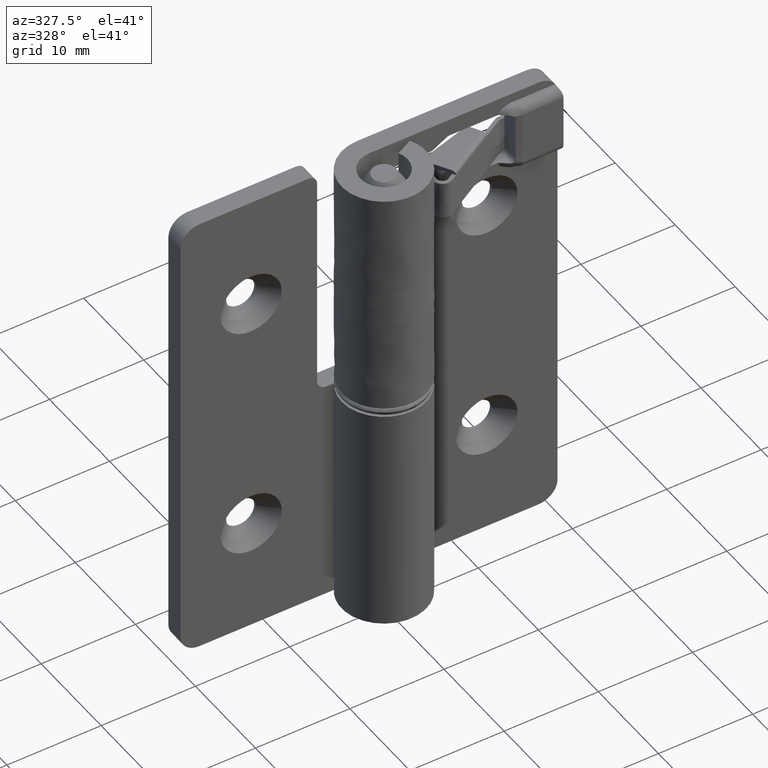
[diagram: clean part render]
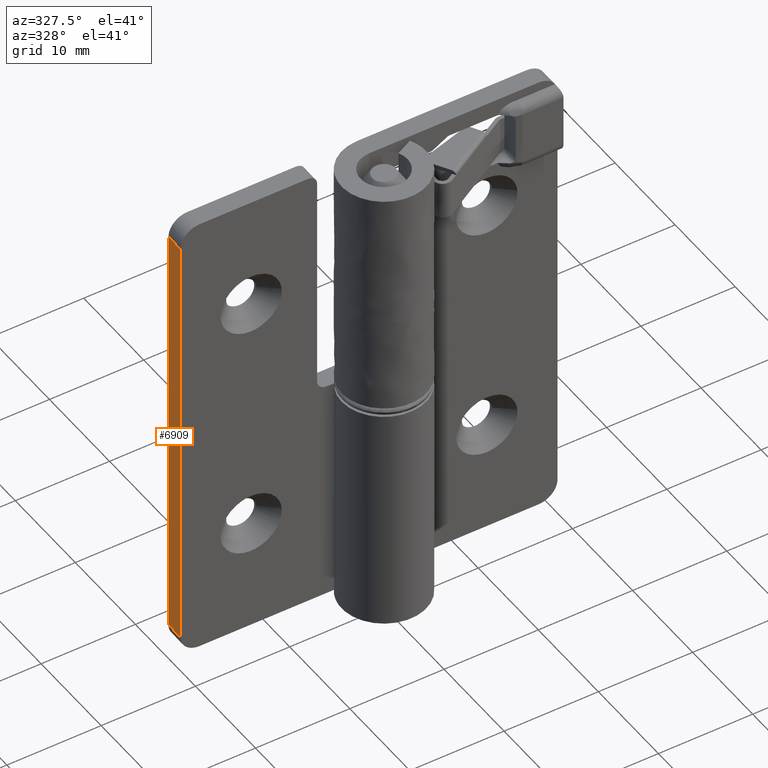
[diagram: same view with one face highlighted and labeled with its STEP entity id]
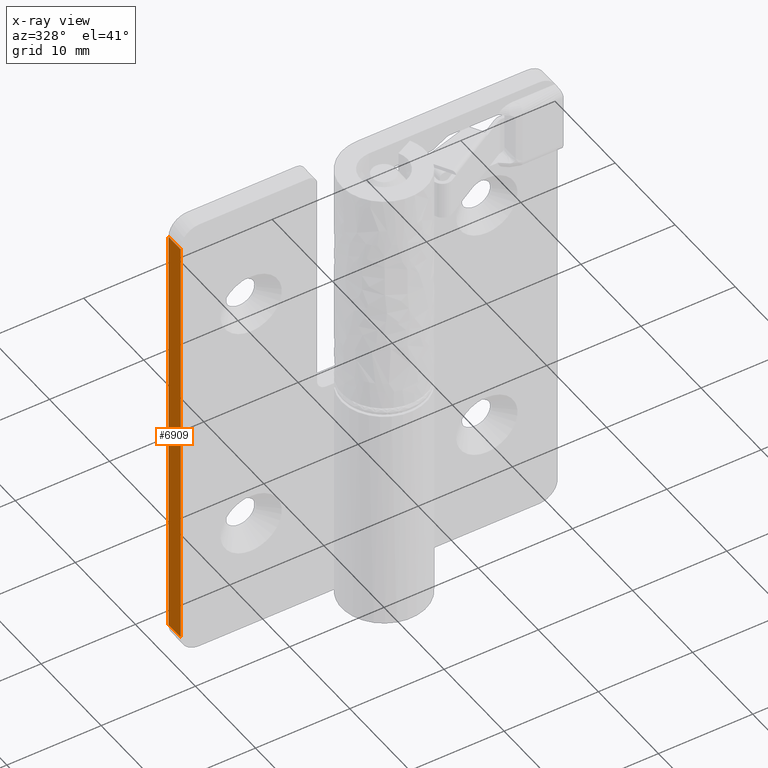
[diagram: x-ray of the same camera — body ghosted, the highlighted face saturated]
A machine part, auxiliary view. The second image highlights one B-rep face of the part: STEP entity #6909.
The next image is the same camera in x-ray: the body ghosted, the highlighted face saturated — about 0% of this face is hidden behind the body in this view.
In plain terms, the highlighted face is a freeform B-spline surface patch.
Its self-contained STEP definition (entity closure, byte-faithful):
#6394=CARTESIAN_POINT('',(-19.999999999979899,4.499999999993505,48.0));
#6395=VERTEX_POINT('',#6394);
#6411=CARTESIAN_POINT('',(-19.999999999973401,2.499999999935425,48.0));
#6412=VERTEX_POINT('',#6411);
#6413=CARTESIAN_POINT('',(-19.999999999973401,2.499999999935425,48.0));
#6414=CARTESIAN_POINT('',(-19.999999999979899,4.499999999993505,48.0));
#6415=QUASI_UNIFORM_CURVE('',1,(#6413,#6414),.UNSPECIFIED.,.F.,.U.);
#6416=EDGE_CURVE('',#6412,#6395,#6415,.T.);
#6457=CARTESIAN_POINT('',(-19.999999999979899,4.499999999993505,2.0));
#6458=VERTEX_POINT('',#6457);
#6479=CARTESIAN_POINT('',(-19.999999999973401,2.499999999935425,2.0));
#6480=VERTEX_POINT('',#6479);
#6494=CARTESIAN_POINT('',(-19.999999999979899,4.499999999993505,2.0));
#6495=CARTESIAN_POINT('',(-19.999999999973401,2.499999999935425,2.0));
#6496=QUASI_UNIFORM_CURVE('',1,(#6494,#6495),.UNSPECIFIED.,.F.,.U.);
#6497=EDGE_CURVE('',#6458,#6480,#6496,.T.);
#6761=CARTESIAN_POINT('',(-19.999999999979899,4.499999999993505,48.0));
#6762=CARTESIAN_POINT('',(-19.999999999979899,4.499999999993505,2.0));
#6763=QUASI_UNIFORM_CURVE('',1,(#6761,#6762),.UNSPECIFIED.,.F.,.U.);
#6764=EDGE_CURVE('',#6395,#6458,#6763,.T.);
#6873=CARTESIAN_POINT('',(-19.999999999973401,2.499999999935425,48.0));
#6874=CARTESIAN_POINT('',(-19.999999999973401,2.499999999935425,2.0));
#6875=QUASI_UNIFORM_CURVE('',1,(#6873,#6874),.UNSPECIFIED.,.F.,.U.);
#6876=EDGE_CURVE('',#6412,#6480,#6875,.T.);
#6898=CARTESIAN_POINT('',(-20.000000000016779,2.400100003808912,-0.297699910843072));
#6899=CARTESIAN_POINT('',(-20.000000000023810,4.599900049764199,-0.297699910843072));
#6900=CARTESIAN_POINT('',(-20.000000000016779,2.400100003808912,50.297701144659229));
#6901=CARTESIAN_POINT('',(-20.000000000023810,4.599900049764199,50.297701144659229));
#6902=B_SPLINE_SURFACE_WITH_KNOTS('',1,1,((#6898,#6900),(#6899,#6901)),.UNSPECIFIED.,.F.,.F.,.U.,(2,2),(2,2),(0.0,2.199800045955287),(0.0,50.595401055502300),.UNSPECIFIED.);
#6903=ORIENTED_EDGE('',*,*,#6764,.T.);
#6904=ORIENTED_EDGE('',*,*,#6497,.T.);
#6905=ORIENTED_EDGE('',*,*,#6876,.F.);
#6906=ORIENTED_EDGE('',*,*,#6416,.T.);
#6907=EDGE_LOOP('',(#6903,#6904,#6905,#6906));
#6908=FACE_OUTER_BOUND('',#6907,.T.);
#6909=ADVANCED_FACE('',(#6908),#6902,.F.);